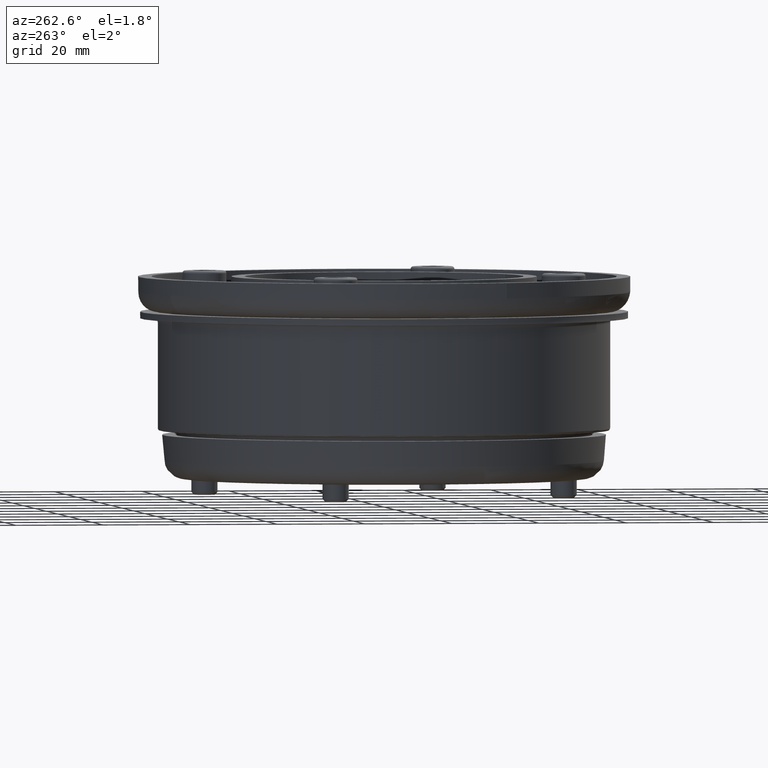
[diagram: clean part render]
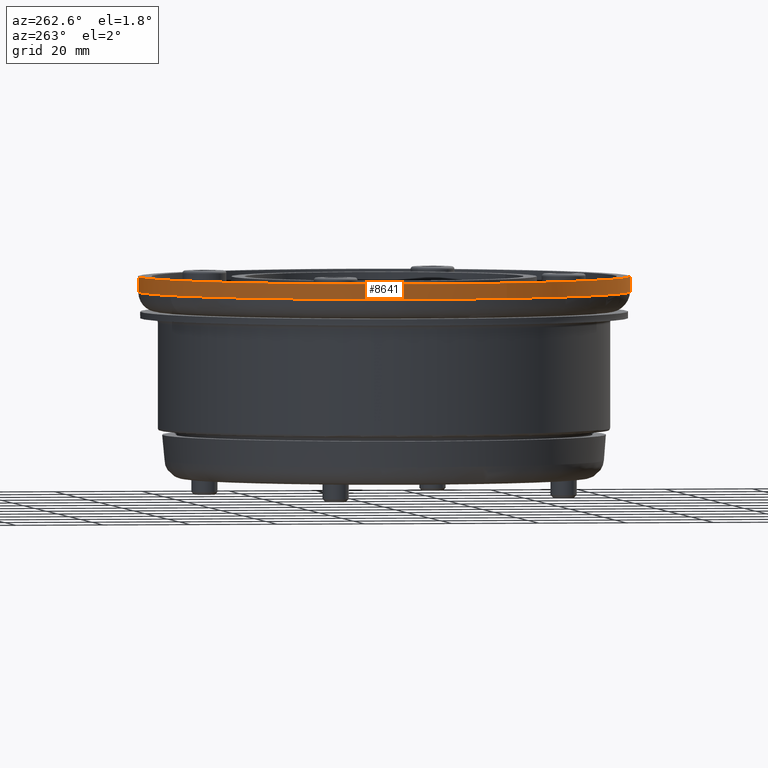
[diagram: same view with one face highlighted and labeled with its STEP entity id]
A machine part, auxiliary view. The second image highlights one B-rep face of the part: STEP entity #8641.
In plain terms, the highlighted cylindrical surface (bore or boss wall) has radius 56 mm, axis along (0, -0, -1).
Its self-contained STEP definition (entity closure, byte-faithful):
#8599=CARTESIAN_POINT('',(56.0,-0.499999999999993,6.858022E-015));
#8600=VERTEX_POINT('',#8599);
#8601=CARTESIAN_POINT('',(0.0,-0.499999999999993,0.0));
#8602=DIRECTION('',(0.0,-1.0,0.0));
#8603=DIRECTION('',(-1.0,0.0,0.0));
#8604=AXIS2_PLACEMENT_3D('',#8601,#8602,#8603);
#8605=CIRCLE('',#8604,56.0);
#8606=EDGE_CURVE('',#8600,#8600,#8605,.T.);
#8622=CARTESIAN_POINT('',(0.0,-1.999999999999993,0.0));
#8623=DIRECTION('',(0.0,-1.0,0.0));
#8624=DIRECTION('',(-1.0,0.0,0.0));
#8625=AXIS2_PLACEMENT_3D('',#8622,#8623,#8624);
#8626=CYLINDRICAL_SURFACE('',#8625,56.0);
#8627=CARTESIAN_POINT('',(0.0,3.000000000000003,-56.0));
#8628=VERTEX_POINT('',#8627);
#8629=CARTESIAN_POINT('',(0.0,3.000000000000003,0.0));
#8630=DIRECTION('',(0.0,-1.0,0.0));
#8631=DIRECTION('',(0.0,0.0,-1.0));
#8632=AXIS2_PLACEMENT_3D('',#8629,#8630,#8631);
#8633=CIRCLE('',#8632,56.0);
#8634=EDGE_CURVE('',#8628,#8628,#8633,.T.);
#8635=ORIENTED_EDGE('',*,*,#8634,.T.);
#8636=EDGE_LOOP('',(#8635));
#8637=FACE_OUTER_BOUND('',#8636,.T.);
#8638=ORIENTED_EDGE('',*,*,#8606,.F.);
#8639=EDGE_LOOP('',(#8638));
#8640=FACE_BOUND('',#8639,.T.);
#8641=ADVANCED_FACE('',(#8637,#8640),#8626,.T.);